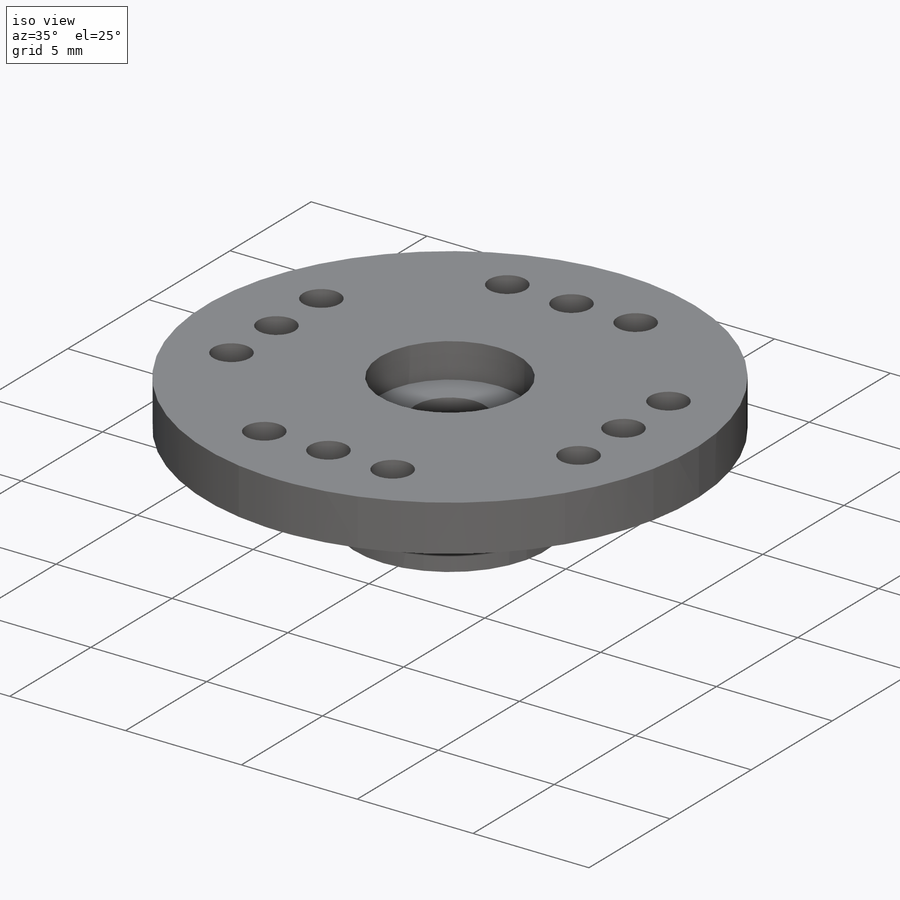
[diagram: iso view]
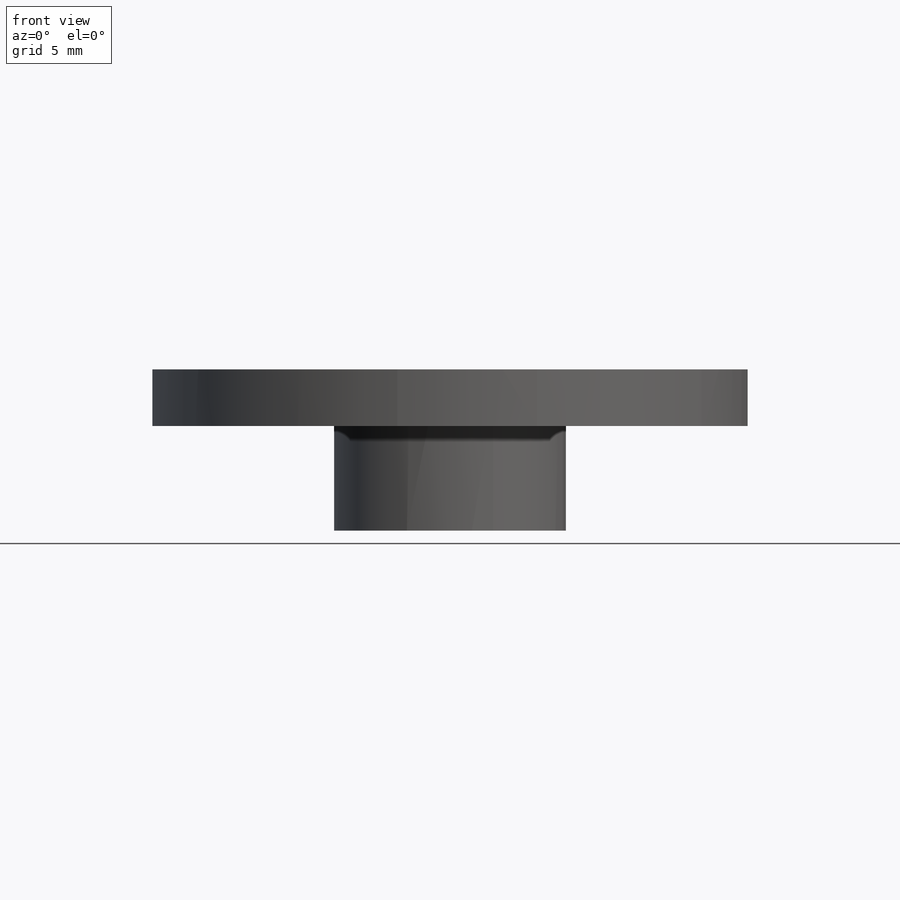
[diagram: front view]
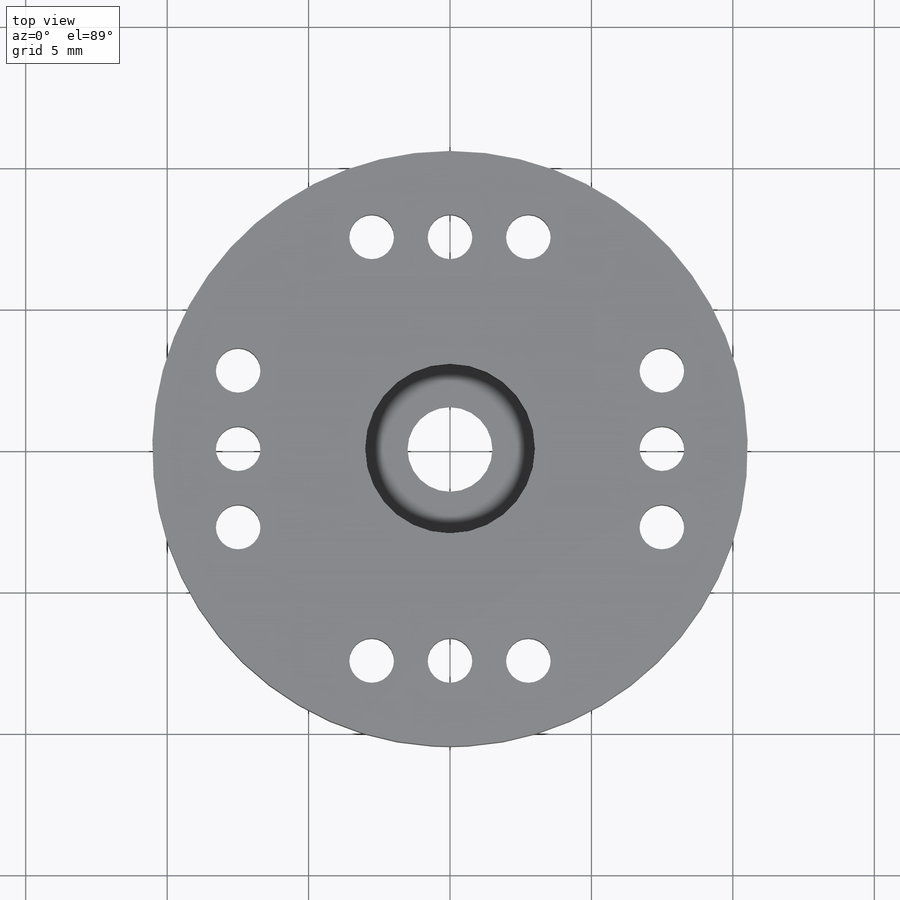
[diagram: top view]
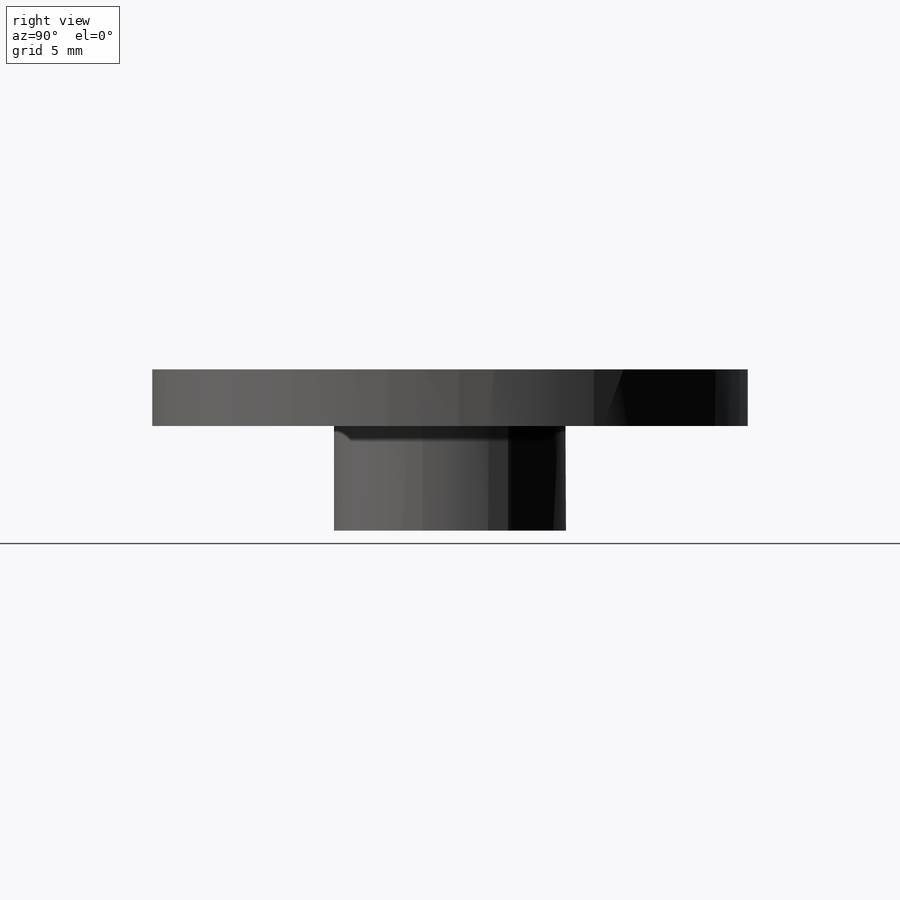
[diagram: right view]
SOLIDWORKS PART (.sldprt)
format: sldprt  version: not decoded by parser v0  size: 274,944 bytes
history: native  units: mm
features: sketch x17, cut_extrude x15, plane x3, extrude x2, material x1 + 2 further entries (+8 scaffold rows collapsed)
feature tree (48):
  scaffold x8  (default folders/planes/origin — collapsed)
  material  "材料 <指定なし>"
  "ｻｰﾌｪｽ ﾎﾞﾃﾞｨ"
  "ｿﾘｯﾄﾞ ﾎﾞﾃﾞｨ"
  plane  "正面"
  plane  "平面"
  plane  "右側面"
  sketch  "ｽｹｯﾁ1"  dims[D1=~10.563947mm]
  extrude  "ﾎﾞｽ - 押し出し1"  Depth=2mm
  sketch  "ｽｹｯﾁ2"  dims[D1=~4.082916mm]
  extrude  "ﾎﾞｽ - 押し出し2"  Depth=3.7mm
  sketch  "ｽｹｯﾁ3"  dims[D1=~2.959417mm]
  cut_extrude  "ｶｯﾄ - 押し出し1"  Depth=3.7mm
  sketch  "ｽｹｯﾁ4"  dims[D1=3.0mm]
  cut_extrude  "ｶｯﾄ - 押し出し2"  Depth=2mm
  sketch  "ｽｹｯﾁ5"  dims[D1=~2.977797mm]
  cut_extrude  "ｶｯﾄ - 押し出し3"  Depth=1.5mm
  sketch  "ｽｹｯﾁ6"  dims[D1=0.8mm]
  cut_extrude  "ｶｯﾄ - 押し出し4"  Depth=2mm
  sketch  "ｽｹｯﾁ7"  dims[D1=~0.791984mm]
  cut_extrude  "ｶｯﾄ - 押し出し5"  Depth=2mm
  sketch  "ｽｹｯﾁ8"  dims[D1=~0.772368mm]
  cut_extrude  "ｶｯﾄ - 押し出し6"  Depth=2mm
  sketch  "ｽｹｯﾁ9"  dims[D1=~0.789887mm]
  cut_extrude  "ｶｯﾄ - 押し出し7"  Depth=2mm
  sketch  "ｽｹｯﾁ10"  dims[D1=~0.793505mm]
  cut_extrude  "ｶｯﾄ - 押し出し8"  Depth=2mm
  sketch  "ｽｹｯﾁ11"  dims[D1=~0.810054mm]
  cut_extrude  "ｶｯﾄ - 押し出し9"  Depth=2mm
  sketch  "ｽｹｯﾁ12"  dims[D1=~0.792745mm]
  cut_extrude  "ｶｯﾄ - 押し出し10"  Depth=2mm
  sketch  "ｽｹｯﾁ13"  dims[D1=~0.793505mm]
  cut_extrude  "ｶｯﾄ - 押し出し11"  Depth=2mm
  sketch  "ｽｹｯﾁ14"  dims[D1=~0.792745mm]
  cut_extrude  "ｶｯﾄ - 押し出し12"  Depth=2mm
  sketch  "ｽｹｯﾁ15"  dims[D1=~0.789887mm]
  cut_extrude  "ｶｯﾄ - 押し出し13"  Depth=2mm
  sketch  "ｽｹｯﾁ16"  dims[D1=~0.793505mm]
  cut_extrude  "ｶｯﾄ - 押し出し14"  Depth=2mm
  sketch  "ｽｹｯﾁ17"  dims[D1=~0.792745mm]
  cut_extrude  "ｶｯﾄ - 押し出し15"  Depth=2mm
decode coverage: 34 of 34 modeling features carry decoded parameters; 2 rows unclassified (native names shown)
note: ~ marks probable driven/reference dimensions
note: suppression state not decoded; provenance and decode notes live in map.json
